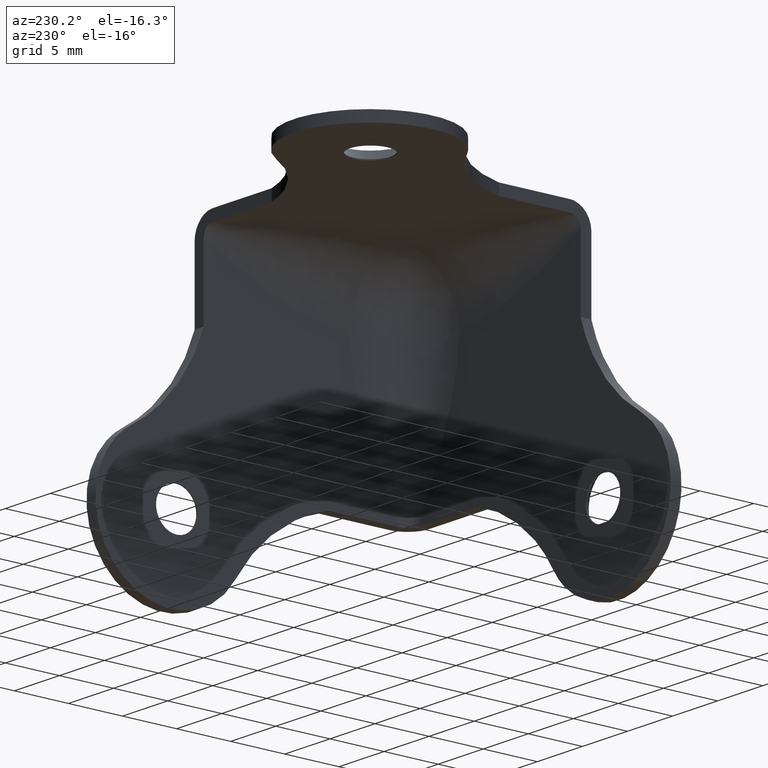
[diagram: clean part render]
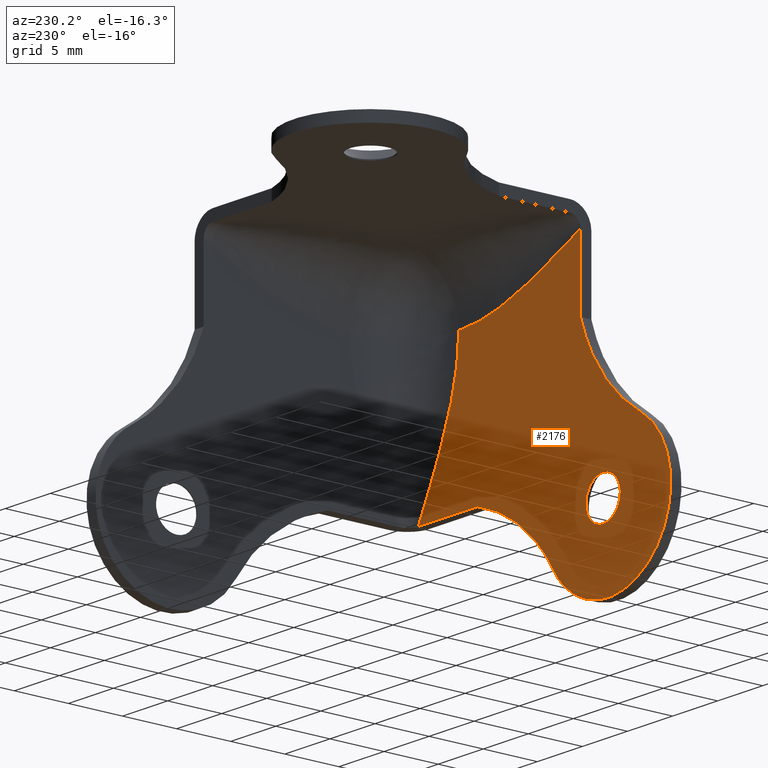
[diagram: same view with one face highlighted and labeled with its STEP entity id]
A machine part, auxiliary view. The second image highlights one B-rep face of the part: STEP entity #2176.
In plain terms, the highlighted face is a freeform B-spline surface patch.
Its self-contained STEP definition (entity closure, byte-faithful):
#750=CARTESIAN_POINT('',(-24.396456112798269,1.0,7.615992293839156));
#751=VERTEX_POINT('',#750);
#757=CARTESIAN_POINT('',(-22.500000000000000,1.0,9.400000000000000));
#758=VERTEX_POINT('',#757);
#759=CARTESIAN_POINT('',(-22.500000000000000,1.0,9.400000000000000));
#760=CARTESIAN_POINT('',(-24.287341397340995,1.0,9.400000000000000));
#761=CARTESIAN_POINT('',(-24.396456112798269,1.0,7.615992293839156));
#769=(BOUNDED_CURVE()B_SPLINE_CURVE(2,(#759,#760,#761),.UNSPECIFIED.,.F.,.U.)B_SPLINE_CURVE_WITH_KNOTS((3,3),(0.500000000000000,0.739332949736621),.UNSPECIFIED.)CURVE()GEOMETRIC_REPRESENTATION_ITEM()RATIONAL_B_SPLINE_CURVE((1.0,0.719604007934091,0.976072014871864))REPRESENTATION_ITEM(''));
#770=EDGE_CURVE('',#758,#751,#769,.T.);
#772=CARTESIAN_POINT('',(-21.831928914926660,1.0,9.278673951368887));
#773=VERTEX_POINT('',#772);
#774=CARTESIAN_POINT('',(-21.831928914926664,1.0,9.278673951368887));
#775=CARTESIAN_POINT('',(-22.154947658199507,1.0,9.400000000000000));
#776=CARTESIAN_POINT('',(-22.500000000000000,1.0,9.400000000000000));
#784=(BOUNDED_CURVE()B_SPLINE_CURVE(2,(#774,#775,#776),.UNSPECIFIED.,.F.,.U.)B_SPLINE_CURVE_WITH_KNOTS((3,3),(0.440284443190089,0.500000000000000),.UNSPECIFIED.)CURVE()GEOMETRIC_REPRESENTATION_ITEM()RATIONAL_B_SPLINE_CURVE((0.893499887856229,0.930038873410831,1.0))REPRESENTATION_ITEM(''));
#785=EDGE_CURVE('',#773,#758,#784,.T.);
#835=CARTESIAN_POINT('',(-22.500000000000000,1.0,5.600000000000000));
#836=VERTEX_POINT('',#835);
#837=CARTESIAN_POINT('',(-22.500000000000000,1.0,5.600000000000000));
#838=CARTESIAN_POINT('',(-20.600000000000005,1.0,5.599999999999999));
#839=CARTESIAN_POINT('',(-20.600000000000001,1.0,7.500000000000000));
#840=CARTESIAN_POINT('',(-20.600000000000005,1.0,8.815960655157680));
#841=CARTESIAN_POINT('',(-21.831928914926664,1.0,9.278673951368887));
#849=(BOUNDED_CURVE()B_SPLINE_CURVE(2,(#837,#838,#839,#840,#841),.UNSPECIFIED.,.F.,.U.)B_SPLINE_CURVE_WITH_KNOTS((3,2,3),(0.0,0.250000000000000,0.440284443190089),.UNSPECIFIED.)CURVE()GEOMETRIC_REPRESENTATION_ITEM()RATIONAL_B_SPLINE_CURVE((1.0,0.707106781186547,1.0,0.777067907775717,0.893499887856229))REPRESENTATION_ITEM(''));
#850=EDGE_CURVE('',#836,#773,#849,.T.);
#852=CARTESIAN_POINT('',(-24.396456112798266,1.0,7.615992293839156));
#853=CARTESIAN_POINT('',(-24.400000000000006,1.0,7.558050319182939));
#854=CARTESIAN_POINT('',(-24.399999999999999,1.0,7.500000000000000));
#855=CARTESIAN_POINT('',(-24.399999999999988,1.0,5.599999999999999));
#856=CARTESIAN_POINT('',(-22.500000000000000,1.0,5.600000000000000));
#864=(BOUNDED_CURVE()B_SPLINE_CURVE(2,(#852,#853,#854,#855,#856),.UNSPECIFIED.,.F.,.U.)B_SPLINE_CURVE_WITH_KNOTS((3,2,3),(0.739332949736622,0.750000000000000,1.0),.UNSPECIFIED.)CURVE()GEOMETRIC_REPRESENTATION_ITEM()RATIONAL_B_SPLINE_CURVE((0.976072014871865,0.987502773252457,1.0,0.707106781186547,1.0))REPRESENTATION_ITEM(''));
#865=EDGE_CURVE('',#751,#836,#864,.T.);
#1360=CARTESIAN_POINT('',(-6.500000000000000,1.0,23.500000000000000));
#1361=VERTEX_POINT('',#1360);
#1412=CARTESIAN_POINT('',(-2.0,1.0,10.0));
#1413=VERTEX_POINT('',#1412);
#1429=CARTESIAN_POINT('',(-6.500000000000000,1.0,23.500000000000000));
#1430=CARTESIAN_POINT('',(-6.500000000000000,1.0,19.0));
#1431=CARTESIAN_POINT('',(-4.250000000000000,1.0,14.500000000000000));
#1432=CARTESIAN_POINT('',(-2.0,1.0,10.0));
#1433=B_SPLINE_CURVE_WITH_KNOTS('',3,(#1429,#1430,#1431,#1432),.UNSPECIFIED.,.F.,.U.,(4,4),(0.0,0.870967741935484),.UNSPECIFIED.);
#1434=EDGE_CURVE('',#1361,#1413,#1433,.T.);
#1469=CARTESIAN_POINT('',(-20.0,1.0,28.0));
#1470=VERTEX_POINT('',#1469);
#1492=CARTESIAN_POINT('',(-20.0,1.0,28.0));
#1493=CARTESIAN_POINT('',(-15.500000000000000,1.0,25.750000000000000));
#1494=CARTESIAN_POINT('',(-11.0,1.0,23.500000000000000));
#1495=CARTESIAN_POINT('',(-6.500000000000000,1.0,23.500000000000000));
#1496=B_SPLINE_CURVE_WITH_KNOTS('',3,(#1492,#1493,#1494,#1495),.UNSPECIFIED.,.F.,.U.,(4,4),(0.129032258064516,1.0),.UNSPECIFIED.);
#1497=EDGE_CURVE('',#1470,#1361,#1496,.T.);
#1981=CARTESIAN_POINT('',(-8.539727915193989,1.0,10.000000402395100));
#1982=VERTEX_POINT('',#1981);
#1988=CARTESIAN_POINT('',(-8.539727915193989,1.0,10.000000402395100));
#1989=CARTESIAN_POINT('',(-2.0,1.0,10.0));
#1990=QUASI_UNIFORM_CURVE('',1,(#1988,#1989),.UNSPECIFIED.,.F.,.U.);
#1991=EDGE_CURVE('',#1982,#1413,#1990,.T.);
#2018=CARTESIAN_POINT('',(-17.002200152241951,1.0,3.390789977538885));
#2019=VERTEX_POINT('',#2018);
#2025=CARTESIAN_POINT('',(-8.539727915193994,1.0,10.000000402395109));
#2026=CARTESIAN_POINT('',(-14.037658483270633,1.0,8.317278277823963));
#2027=CARTESIAN_POINT('',(-17.002200152241951,1.0,3.390789977538885));
#2035=(BOUNDED_CURVE()B_SPLINE_CURVE(2,(#2025,#2026,#2027),.UNSPECIFIED.,.F.,.U.)CURVE()GEOMETRIC_REPRESENTATION_ITEM()QUASI_UNIFORM_CURVE()RATIONAL_B_SPLINE_CURVE((1.0,0.933752821567507,1.0))REPRESENTATION_ITEM(''));
#2036=EDGE_CURVE('',#1982,#2019,#2035,.T.);
#2061=CARTESIAN_POINT('',(-26.609209523297601,1.0,12.997799754804120));
#2062=VERTEX_POINT('',#2061);
#2068=CARTESIAN_POINT('',(-26.609209523297601,1.0,12.997799754804120));
#2069=CARTESIAN_POINT('',(-30.755180584762932,1.0,10.502938890656960));
#2070=CARTESIAN_POINT('',(-29.886190687552769,1.0,5.742869213382511));
#2071=CARTESIAN_POINT('',(-29.017200790342606,1.0,0.982799536108062));
#2072=CARTESIAN_POINT('',(-24.257131160213401,1.0,0.113809380650248));
#2073=CARTESIAN_POINT('',(-19.497061530084192,1.0,-0.755180774807566));
#2074=CARTESIAN_POINT('',(-17.002200152241969,1.0,3.390789977538891));
#2082=(BOUNDED_CURVE()B_SPLINE_CURVE(2,(#2068,#2069,#2070,#2071,#2072,#2073,#2074),.UNSPECIFIED.,.F.,.U.)B_SPLINE_CURVE_WITH_KNOTS((3,2,2,3),(0.0,0.333333333333333,0.666666666666667,1.0),.UNSPECIFIED.)CURVE()GEOMETRIC_REPRESENTATION_ITEM()RATIONAL_B_SPLINE_CURVE((1.0,0.822599706248645,1.0,0.822599706248645,1.0,0.822599706248645,1.0))REPRESENTATION_ITEM(''));
#2083=EDGE_CURVE('',#2062,#2019,#2082,.T.);
#2104=CARTESIAN_POINT('',(-20.0,1.0,21.460272000000000));
#2105=VERTEX_POINT('',#2104);
#2111=CARTESIAN_POINT('',(-26.609209523297611,1.0,12.997799754804131));
#2112=CARTESIAN_POINT('',(-21.682721756149874,1.0,15.962341666179865));
#2113=CARTESIAN_POINT('',(-20.0,1.0,21.460272000000000));
#2121=(BOUNDED_CURVE()B_SPLINE_CURVE(2,(#2111,#2112,#2113),.UNSPECIFIED.,.F.,.U.)CURVE()GEOMETRIC_REPRESENTATION_ITEM()QUASI_UNIFORM_CURVE()RATIONAL_B_SPLINE_CURVE((1.0,0.933752828470916,1.0))REPRESENTATION_ITEM(''));
#2122=EDGE_CURVE('',#2062,#2105,#2121,.T.);
#2147=CARTESIAN_POINT('',(-20.0,1.0,28.0));
#2148=CARTESIAN_POINT('',(-20.0,1.0,21.460272000000000));
#2149=QUASI_UNIFORM_CURVE('',1,(#2147,#2148),.UNSPECIFIED.,.F.,.U.);
#2150=EDGE_CURVE('',#1470,#2105,#2149,.T.);
#2156=CARTESIAN_POINT('',(-31.385549017242901,1.0,29.397978995293059));
#2157=CARTESIAN_POINT('',(-0.602020184439501,1.0,29.397978995293059));
#2158=CARTESIAN_POINT('',(-31.385549017242901,1.0,-1.385548305305361));
#2159=CARTESIAN_POINT('',(-0.602020184439501,1.0,-1.385548305305361));
#2160=B_SPLINE_SURFACE_WITH_KNOTS('',1,1,((#2156,#2158),(#2157,#2159)),.UNSPECIFIED.,.F.,.F.,.U.,(2,2),(2,2),(0.0,30.783528832803398),(0.0,30.783527300598418),.UNSPECIFIED.);
#2161=ORIENTED_EDGE('',*,*,#1497,.T.);
#2162=ORIENTED_EDGE('',*,*,#1434,.T.);
#2163=ORIENTED_EDGE('',*,*,#1991,.F.);
#2164=ORIENTED_EDGE('',*,*,#2036,.T.);
#2165=ORIENTED_EDGE('',*,*,#2083,.F.);
#2166=ORIENTED_EDGE('',*,*,#2122,.T.);
#2167=ORIENTED_EDGE('',*,*,#2150,.F.);
#2168=EDGE_LOOP('',(#2161,#2162,#2163,#2164,#2165,#2166,#2167));
#2169=FACE_OUTER_BOUND('',#2168,.T.);
#2170=ORIENTED_EDGE('',*,*,#770,.T.);
#2171=ORIENTED_EDGE('',*,*,#865,.T.);
#2172=ORIENTED_EDGE('',*,*,#850,.T.);
#2173=ORIENTED_EDGE('',*,*,#785,.T.);
#2174=EDGE_LOOP('',(#2170,#2171,#2172,#2173));
#2175=FACE_BOUND('',#2174,.T.);
#2176=ADVANCED_FACE('',(#2169,#2175),#2160,.T.);